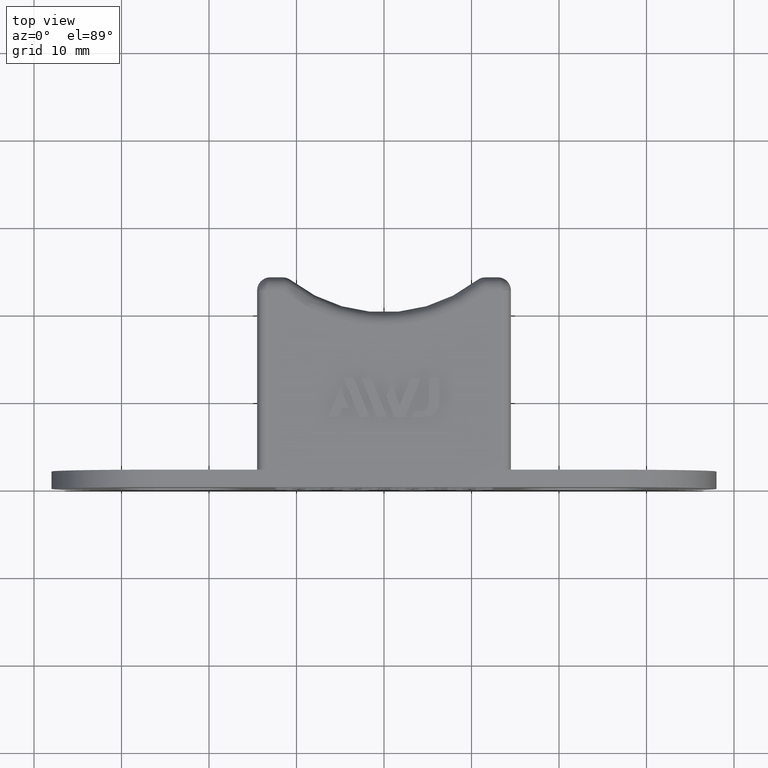
[diagram: clean part render]
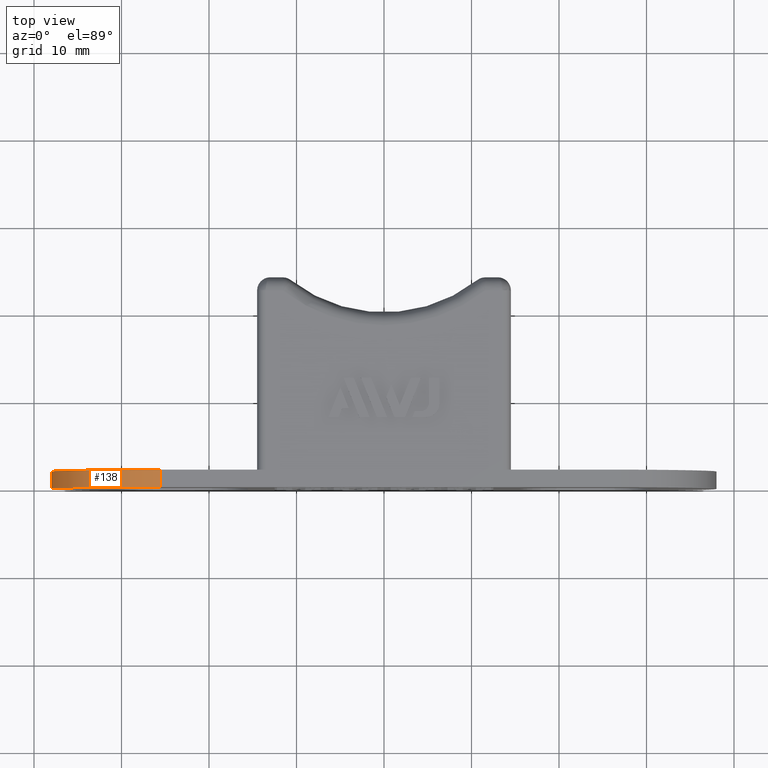
[diagram: same view with one face highlighted and labeled with its STEP entity id]
A machine part, top view. The second image highlights one B-rep face of the part: STEP entity #138.
In plain terms, the highlighted cylindrical surface (partial cylindrical patch) has radius 12.5 mm, axis along (-0, -1, 0).
Its self-contained STEP definition (entity closure, byte-faithful):
#138 = ADVANCED_FACE( '', ( #464 ), #465, .T. );
#464 = FACE_OUTER_BOUND( '', #1220, .T. );
#465 = CYLINDRICAL_SURFACE( '', #1221, 12.5000000000000 );
#1220 = EDGE_LOOP( '', ( #2456, #2457, #2458, #2459 ) );
#1221 = AXIS2_PLACEMENT_3D( '', #2460, #2461, #2462 );
#2456 = ORIENTED_EDGE( '', *, *, #3877, .F. );
#2457 = ORIENTED_EDGE( '', *, *, #3864, .T. );
#2458 = ORIENTED_EDGE( '', *, *, #3746, .F. );
#2459 = ORIENTED_EDGE( '', *, *, #3663, .F. );
#2460 = CARTESIAN_POINT( '', ( -25.5000000000000, 37.2500000000000, 0.000000000000000 ) );
#2461 = DIRECTION( '', ( -6.93889390390723E-017, -1.00000000000000, 0.000000000000000 ) );
#2462 = DIRECTION( '', ( -1.00000000000000, 6.93889390390723E-017, 0.000000000000000 ) );
#3663 = EDGE_CURVE( '', #4253, #4255, #4256, .T. );
#3746 = EDGE_CURVE( '', #4255, #4420, #4421, .T. );
#3864 = EDGE_CURVE( '', #4642, #4420, #4643, .T. );
#3877 = EDGE_CURVE( '', #4642, #4253, #4664, .T. );
#4253 = VERTEX_POINT( '', #5218 );
#4255 = VERTEX_POINT( '', #5221 );
#4256 = LINE( '', #5222, #5223 );
#4420 = VERTEX_POINT( '', #5463 );
#4421 = CIRCLE( '', #5464, 12.5000000000000 );
#4642 = VERTEX_POINT( '', #5784 );
#4643 = LINE( '', #5785, #5786 );
#4664 = CIRCLE( '', #5817, 12.5000000000000 );
#5218 = CARTESIAN_POINT( '', ( -25.5000000000000, 1.99999999999999, 12.5000000000000 ) );
#5221 = CARTESIAN_POINT( '', ( -25.5000000000000, -6.93889390390723E-015, 12.5000000000000 ) );
#5222 = CARTESIAN_POINT( '', ( -25.5000000000000, -6.93889390390723E-015, 12.5000000000000 ) );
#5223 = VECTOR( '', #6587, 1000.00000000000 );
#5463 = CARTESIAN_POINT( '', ( -38.0000000000000, -6.93889390390723E-015, 0.000000000000000 ) );
#5464 = AXIS2_PLACEMENT_3D( '', #6682, #6683, #6684 );
#5784 = CARTESIAN_POINT( '', ( -38.0000000000000, 1.99999999999999, 0.000000000000000 ) );
#5785 = CARTESIAN_POINT( '', ( -38.0000000000000, 1.99999999999999, 0.000000000000000 ) );
#5786 = VECTOR( '', #6838, 1000.00000000000 );
#5817 = AXIS2_PLACEMENT_3D( '', #6855, #6856, #6857 );
#6587 = DIRECTION( '', ( -6.93889390390723E-017, -1.00000000000000, 0.000000000000000 ) );
#6682 = CARTESIAN_POINT( '', ( -25.5000000000000, -6.93889390390723E-015, 0.000000000000000 ) );
#6683 = DIRECTION( '', ( 0.000000000000000, -1.00000000000000, 0.000000000000000 ) );
#6684 = DIRECTION( '', ( 0.000000000000000, 0.000000000000000, -1.00000000000000 ) );
#6838 = DIRECTION( '', ( -6.93889390390723E-017, -1.00000000000000, 0.000000000000000 ) );
#6855 = CARTESIAN_POINT( '', ( -25.5000000000000, 1.99999999999999, 0.000000000000000 ) );
#6856 = DIRECTION( '', ( 0.000000000000000, 1.00000000000000, 0.000000000000000 ) );
#6857 = DIRECTION( '', ( 0.000000000000000, 0.000000000000000, 1.00000000000000 ) );